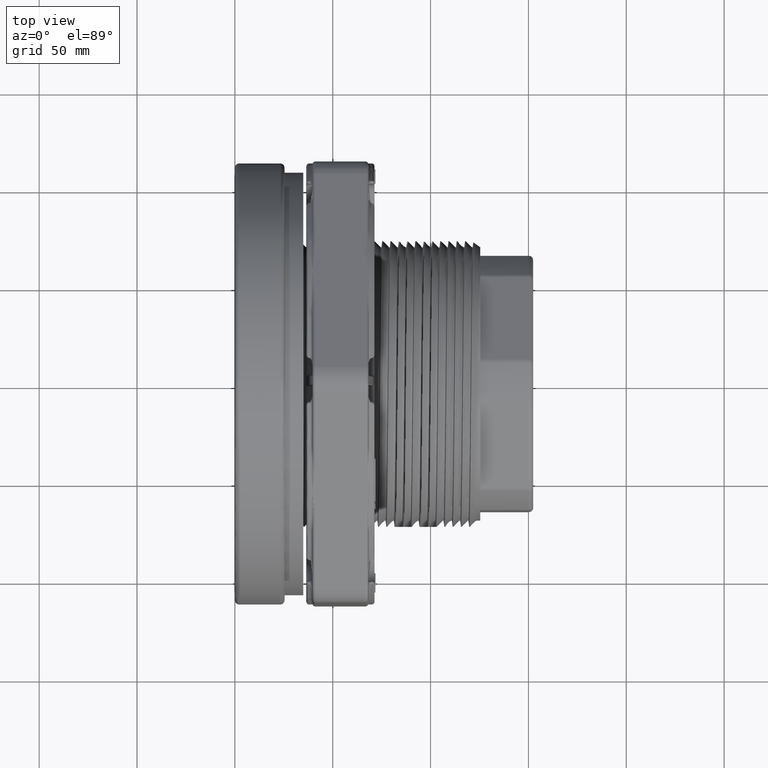
[diagram: clean part render]
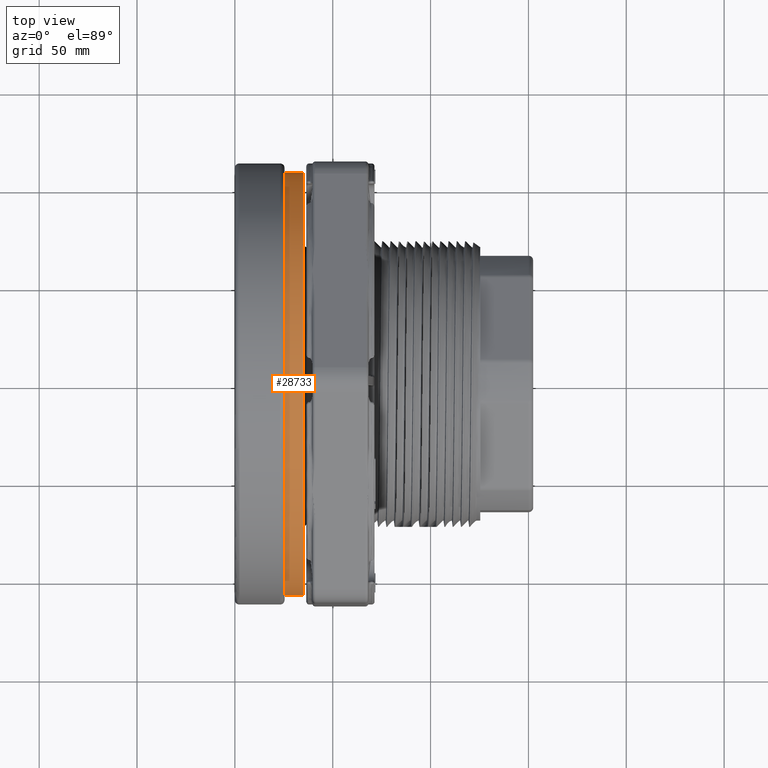
[diagram: same view with one face highlighted and labeled with its STEP entity id]
A machine part, top view. The second image highlights one B-rep face of the part: STEP entity #28733.
In plain terms, the highlighted cylindrical surface (bore or boss wall) has radius 107.95 mm, axis along (1, 0, 0).
Its self-contained STEP definition (entity closure, byte-faithful):
#3111=CIRCLE('',#32137,4.25);
#3112=CIRCLE('',#32138,4.25);
#3113=CIRCLE('',#32139,4.25);
#3114=CIRCLE('',#32140,4.25);
#4918=FACE_OUTER_BOUND('',#6787,.T.);
#6787=EDGE_LOOP('',(#26261,#26262,#26263,#26264,#26265,#26266));
#9250=LINE('',#78115,#10714);
#10714=VECTOR('',#40259,4.25);
#13298=VERTEX_POINT('',#78110);
#13299=VERTEX_POINT('',#78111);
#13300=VERTEX_POINT('',#78114);
#13301=VERTEX_POINT('',#78116);
#17621=EDGE_CURVE('',#13298,#13299,#3111,.T.);
#17622=EDGE_CURVE('',#13299,#13298,#3112,.T.);
#17623=EDGE_CURVE('',#13299,#13300,#9250,.T.);
#17624=EDGE_CURVE('',#13300,#13301,#3113,.T.);
#17625=EDGE_CURVE('',#13301,#13300,#3114,.T.);
#26261=ORIENTED_EDGE('',*,*,#17621,.F.);
#26262=ORIENTED_EDGE('',*,*,#17622,.F.);
#26263=ORIENTED_EDGE('',*,*,#17623,.T.);
#26264=ORIENTED_EDGE('',*,*,#17624,.T.);
#26265=ORIENTED_EDGE('',*,*,#17625,.T.);
#26266=ORIENTED_EDGE('',*,*,#17623,.F.);
#26932=CYLINDRICAL_SURFACE('',#32136,4.25);
#28733=ADVANCED_FACE('',(#4918),#26932,.T.);
#32136=AXIS2_PLACEMENT_3D('',#78109,#40253,#40254);
#32137=AXIS2_PLACEMENT_3D('',#78112,#40255,#40256);
#32138=AXIS2_PLACEMENT_3D('',#78113,#40257,#40258);
#32139=AXIS2_PLACEMENT_3D('',#78117,#40260,#40261);
#32140=AXIS2_PLACEMENT_3D('',#78118,#40262,#40263);
#40253=DIRECTION('center_axis',(1.,0.,0.));
#40254=DIRECTION('ref_axis',(5.144256166556E-18,1.,0.));
#40255=DIRECTION('center_axis',(1.,0.,0.));
#40256=DIRECTION('ref_axis',(5.144256166556E-18,1.,0.));
#40257=DIRECTION('center_axis',(1.,0.,0.));
#40258=DIRECTION('ref_axis',(5.144256166556E-18,1.,0.));
#40259=DIRECTION('',(-1.,0.,0.));
#40260=DIRECTION('center_axis',(1.,0.,0.));
#40261=DIRECTION('ref_axis',(5.144256166556E-18,1.,0.));
#40262=DIRECTION('center_axis',(1.,0.,0.));
#40263=DIRECTION('ref_axis',(5.144256166556E-18,1.,0.));
#78109=CARTESIAN_POINT('Origin',(-1.74838271594513E-16,0.,0.));
#78110=CARTESIAN_POINT('',(0.1875,4.25,0.));
#78111=CARTESIAN_POINT('',(0.1875,-4.25,-5.20474889637625E-16));
#78112=CARTESIAN_POINT('Origin',(0.1875,0.,0.));
#78113=CARTESIAN_POINT('Origin',(0.1875,0.,0.));
#78114=CARTESIAN_POINT('',(-0.1875,-4.25,-5.20474889637625E-16));
#78115=CARTESIAN_POINT('',(-1.96701360302376E-16,-4.25,-5.20474889637625E-16));
#78116=CARTESIAN_POINT('',(-0.1875,4.25,0.));
#78117=CARTESIAN_POINT('Origin',(-0.1875,0.,0.));
#78118=CARTESIAN_POINT('Origin',(-0.1875,0.,0.));